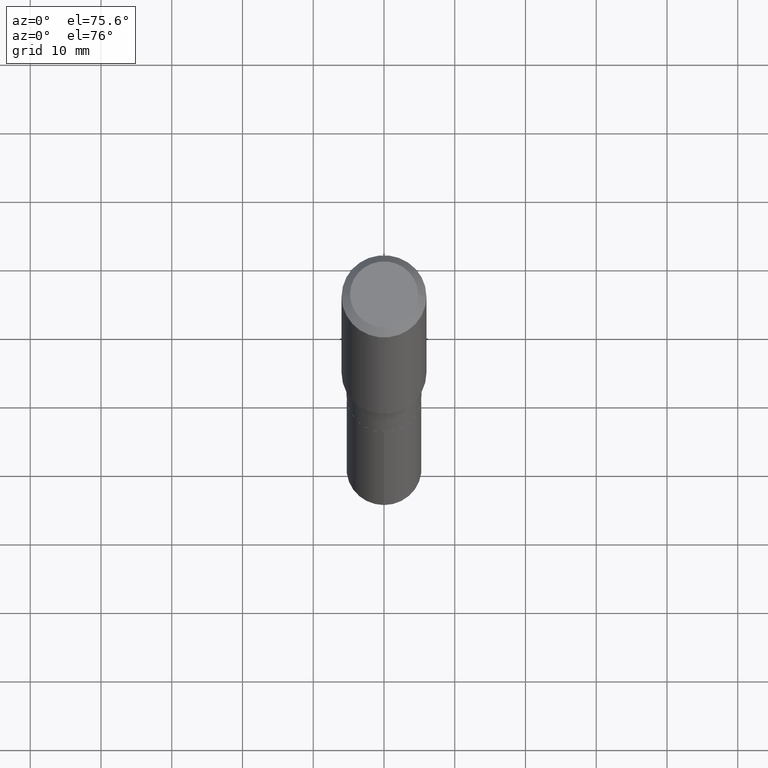
[diagram: clean part render]
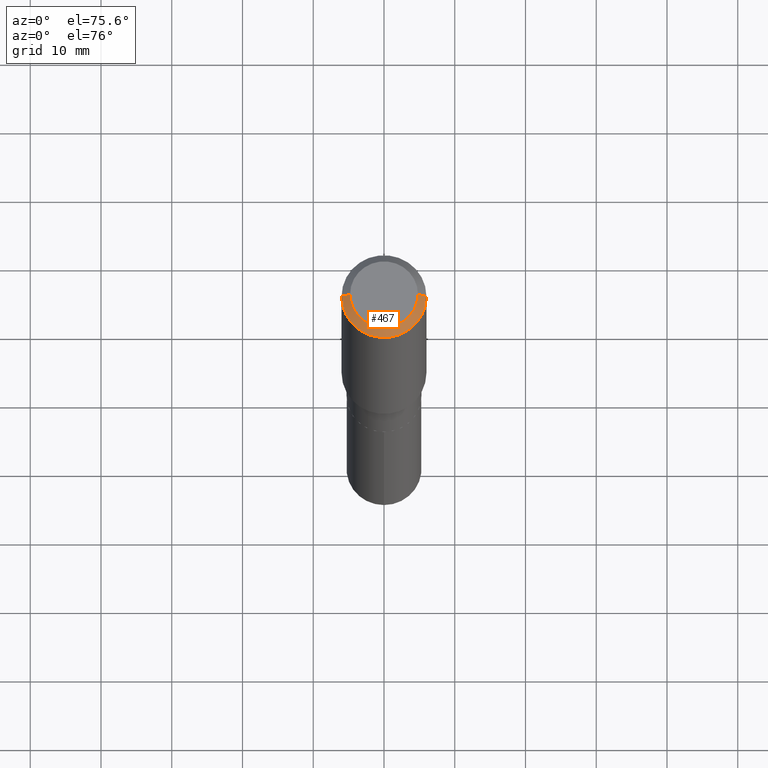
[diagram: same view with one face highlighted and labeled with its STEP entity id]
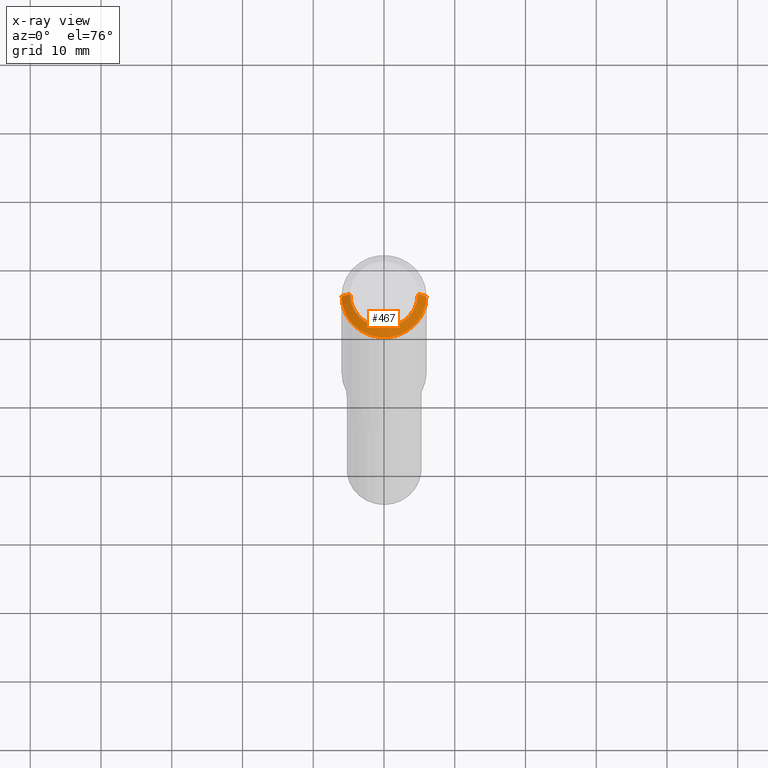
[diagram: x-ray of the same camera — body ghosted, the highlighted face saturated]
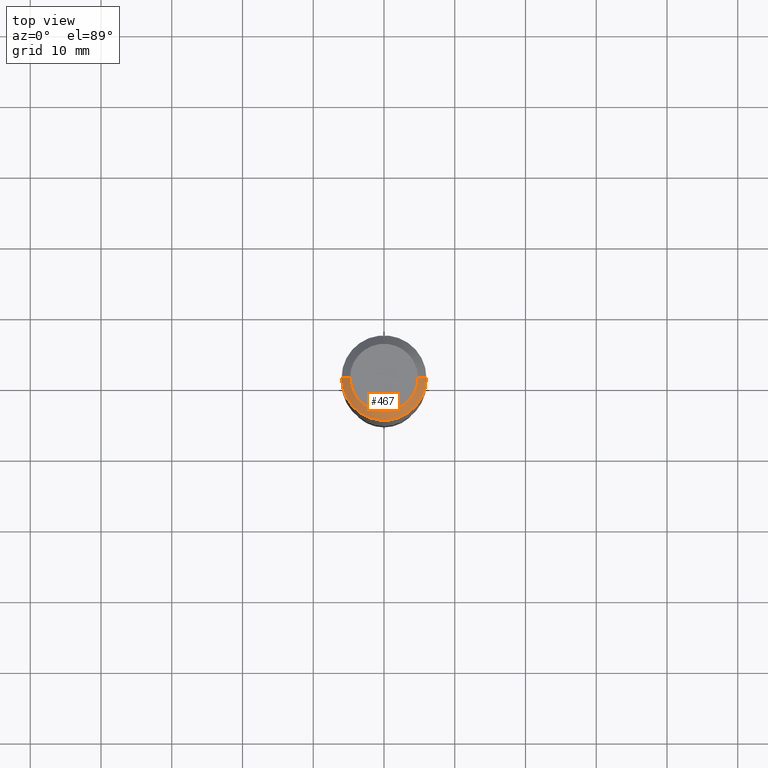
[diagram: same view with one face highlighted and labeled with its STEP entity id]
A machine part, auxiliary view. The second image highlights one B-rep face of the part: STEP entity #467.
The next image is the same camera in x-ray: the body ghosted, the highlighted face saturated — about 0% of this face is hidden behind the body in this view.
A second angle (top view) of the same face is appended — the face is thin or edge-on in the first view.
In plain terms, the highlighted conical surface has half-angle 45 deg.
Its self-contained STEP definition (entity closure, byte-faithful):
#4 = CARTESIAN_POINT ( 'NONE',  ( 0.2361999999999999933, -1.814313362916447440E-15, -0.04724000000000028177 ) ) ;
#12 = AXIS2_PLACEMENT_3D ( 'NONE', #28, #183, #122 ) ;
#14 = VERTEX_POINT ( 'NONE', #451 ) ;
#21 = CONICAL_SURFACE ( 'NONE', #402, 0.2361999999999999933, 0.7853981633974452814 ) ;
#28 = CARTESIAN_POINT ( 'NONE',  ( -9.427742298522546243E-47, 1.346031739168365344E-32, 3.855188123715862256E-18 ) ) ;
#31 = DIRECTION ( 'NONE',  ( -2.445468806185136597E-29, 3.491481338843145583E-15, 1.000000000000000000 ) ) ;
#41 = DIRECTION ( 'NONE',  ( 2.445468806185136597E-29, -3.491481338843145583E-15, -1.000000000000000000 ) ) ;
#60 = CARTESIAN_POINT ( 'NONE',  ( 1.155239464041865506E-30, -1.649375784469511859E-16, -0.04724000000000028177 ) ) ;
#62 = FACE_OUTER_BOUND ( 'NONE', #72, .T. ) ;
#72 = EDGE_LOOP ( 'NONE', ( #130, #415, #137, #78 ) ) ;
#78 = ORIENTED_EDGE ( 'NONE', *, *, #315, .T. ) ;
#120 = AXIS2_PLACEMENT_3D ( 'NONE', #60, #31, #186 ) ;
#121 = LINE ( 'NONE', #163, #339 ) ;
#122 = DIRECTION ( 'NONE',  ( 1.000000000000000000, -6.982962677686266711E-15, 4.876185090822587894E-29 ) ) ;
#130 = ORIENTED_EDGE ( 'NONE', *, *, #325, .F. ) ;
#137 = ORIENTED_EDGE ( 'NONE', *, *, #158, .T. ) ;
#158 = EDGE_CURVE ( 'NONE', #14, #333, #121, .T. ) ;
#163 = CARTESIAN_POINT ( 'NONE',  ( -0.2361999999999999933, 1.484438206022545019E-15, -0.04724000000000028177 ) ) ;
#175 = VERTEX_POINT ( 'NONE', #4 ) ;
#183 = DIRECTION ( 'NONE',  ( -2.445468806185136597E-29, 3.491481338843145583E-15, 1.000000000000000000 ) ) ;
#186 = DIRECTION ( 'NONE',  ( 1.000000000000000000, -6.982962677686266711E-15, 0.000000000000000000 ) ) ;
#202 = VECTOR ( 'NONE', #299, 39.37007874015748143 ) ;
#263 = DIRECTION ( 'NONE',  ( -1.000000000000000000, 6.982962677686266711E-15, 0.000000000000000000 ) ) ;
#299 = DIRECTION ( 'NONE',  ( 0.7071067811865453523, -7.319954787623248157E-15, -0.7071067811865496822 ) ) ;
#300 = EDGE_CURVE ( 'NONE', #14, #304, #382, .T. ) ;
#304 = VERTEX_POINT ( 'NONE', #396 ) ;
#305 = CARTESIAN_POINT ( 'NONE',  ( 0.2361999999999999933, -1.785387205520586782E-15, -0.04724000000000028177 ) ) ;
#315 = EDGE_CURVE ( 'NONE', #333, #175, #341, .T. ) ;
#325 = EDGE_CURVE ( 'NONE', #304, #175, #343, .T. ) ;
#333 = VERTEX_POINT ( 'NONE', #478 ) ;
#339 = VECTOR ( 'NONE', #397, 39.37007874015748143 ) ;
#341 = CIRCLE ( 'NONE', #120, 0.2361999999999999933 ) ;
#343 = LINE ( 'NONE', #305, #202 ) ;
#370 = CARTESIAN_POINT ( 'NONE',  ( 1.155239464041865506E-30, -1.649375784469511859E-16, -0.04724000000000028177 ) ) ;
#382 = CIRCLE ( 'NONE', #12, 0.1889600000000000168 ) ;
#396 = CARTESIAN_POINT ( 'NONE',  ( 0.1889600000000000168, -1.540873453589747738E-15, 3.855188123725863225E-18 ) ) ;
#397 = DIRECTION ( 'NONE',  ( -0.7071067811865453523, 2.468850131082234184E-15, -0.7071067811865496822 ) ) ;
#402 = AXIS2_PLACEMENT_3D ( 'NONE', #370, #41, #263 ) ;
#415 = ORIENTED_EDGE ( 'NONE', *, *, #300, .F. ) ;
#451 = CARTESIAN_POINT ( 'NONE',  ( -0.1889600000000000168, 1.401969416799070942E-15, 3.855188123706346622E-18 ) ) ;
#467 = ADVANCED_FACE ( 'NONE', ( #62 ), #21, .T. ) ;
#478 = CARTESIAN_POINT ( 'NONE',  ( -0.2361999999999999933, -1.476932286640498674E-15, -0.04724000000000028177 ) ) ;